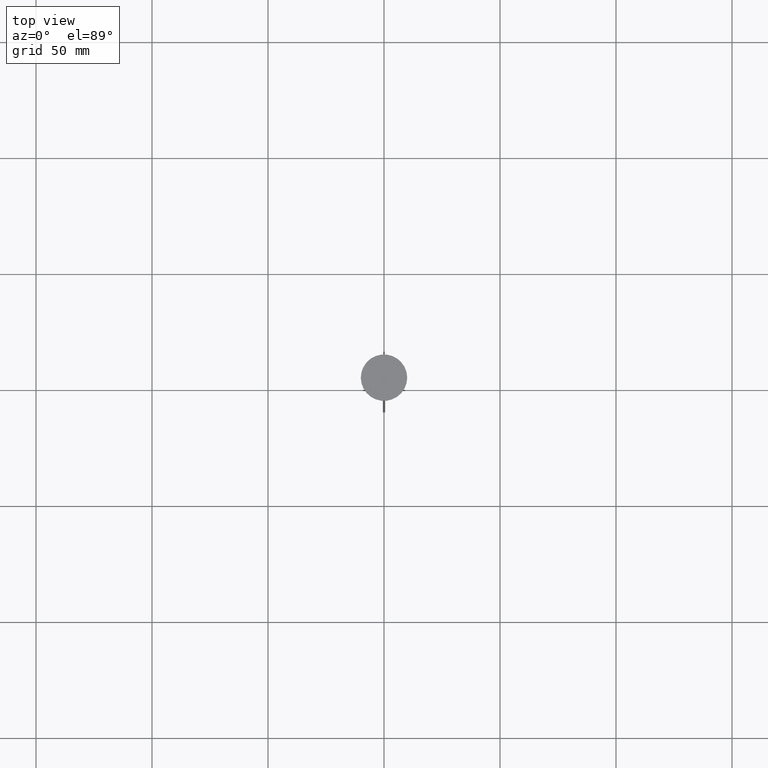
[diagram: clean part render]
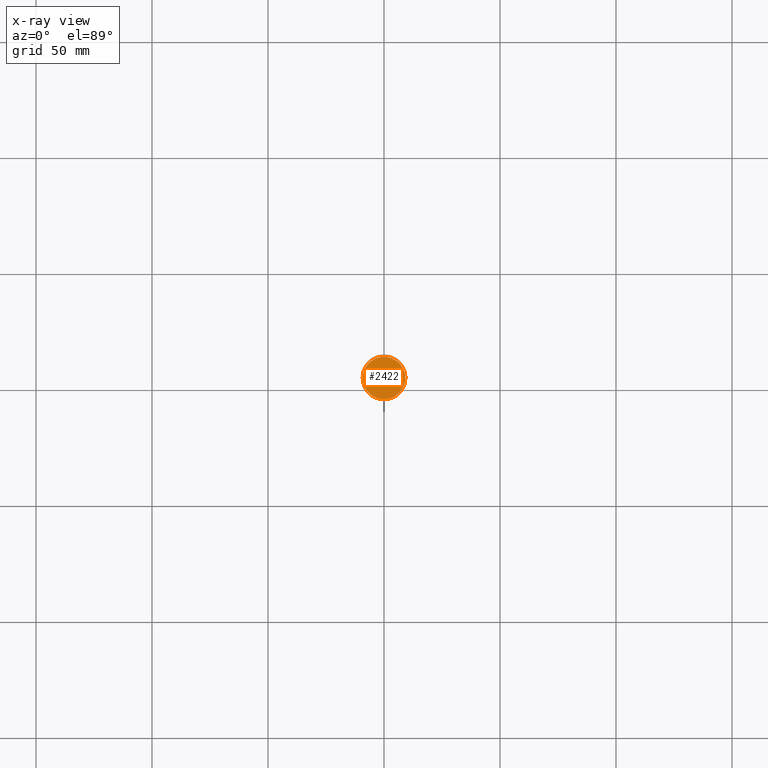
[diagram: x-ray — body ghosted, one internal face saturated and labeled with its STEP entity id]
A machine part, top view, then the same camera in x-ray: the body is ghosted and one INTERNAL B-rep face — a face not visible from any outside direction — is saturated and labeled: STEP entity #2422.
In plain terms, the highlighted planar face has unit normal (0, 0, -1).
Its self-contained STEP definition (entity closure, byte-faithful):
#107 = DIRECTION ( 'NONE',  ( -0.000000000000000000, -0.000000000000000000, 1.000000000000000000 ) ) ;
#139 = EDGE_CURVE ( 'NONE', #559, #1746, #1321, .T. ) ;
#291 = ORIENTED_EDGE ( 'NONE', *, *, #139, .T. ) ;
#559 = VERTEX_POINT ( 'NONE', #1177 ) ;
#974 = EDGE_CURVE ( 'NONE', #1746, #559, #2225, .T. ) ;
#1003 = DIRECTION ( 'NONE',  ( -1.000000000000000000, 0.000000000000000000, -0.000000000000000000 ) ) ;
#1034 = CARTESIAN_POINT ( 'NONE',  ( 0.000000000000000000, 0.000000000000000000, -12.00000000000000000 ) ) ;
#1061 = AXIS2_PLACEMENT_3D ( 'NONE', #2160, #107, #1595 ) ;
#1102 = AXIS2_PLACEMENT_3D ( 'NONE', #1212, #1447, #1810 ) ;
#1157 = AXIS2_PLACEMENT_3D ( 'NONE', #1034, #2488, #1003 ) ;
#1177 = CARTESIAN_POINT ( 'NONE',  ( 9.200000000000001066, 1.145044757202775450E-15, -12.00000000000000000 ) ) ;
#1212 = CARTESIAN_POINT ( 'NONE',  ( 0.000000000000000000, 0.000000000000000000, -12.00000000000000000 ) ) ;
#1321 = CIRCLE ( 'NONE', #1102, 9.200000000000001066 ) ;
#1447 = DIRECTION ( 'NONE',  ( -0.000000000000000000, -0.000000000000000000, 1.000000000000000000 ) ) ;
#1453 = FACE_OUTER_BOUND ( 'NONE', #2234, .T. ) ;
#1568 = ORIENTED_EDGE ( 'NONE', *, *, #974, .T. ) ;
#1595 = DIRECTION ( 'NONE',  ( -1.000000000000000000, 0.000000000000000000, 0.000000000000000000 ) ) ;
#1746 = VERTEX_POINT ( 'NONE', #1950 ) ;
#1810 = DIRECTION ( 'NONE',  ( -1.000000000000000000, 0.000000000000000000, 0.000000000000000000 ) ) ;
#1866 = PLANE ( 'NONE',  #1157 ) ;
#1950 = CARTESIAN_POINT ( 'NONE',  ( -9.200000000000001066, 0.000000000000000000, -12.00000000000000000 ) ) ;
#2160 = CARTESIAN_POINT ( 'NONE',  ( 0.000000000000000000, 0.000000000000000000, -12.00000000000000000 ) ) ;
#2225 = CIRCLE ( 'NONE', #1061, 9.200000000000001066 ) ;
#2234 = EDGE_LOOP ( 'NONE', ( #1568, #291 ) ) ;
#2422 = ADVANCED_FACE ( 'NONE', ( #1453 ), #1866, .F. ) ;
#2488 = DIRECTION ( 'NONE',  ( 0.000000000000000000, 0.000000000000000000, -1.000000000000000000 ) ) ;